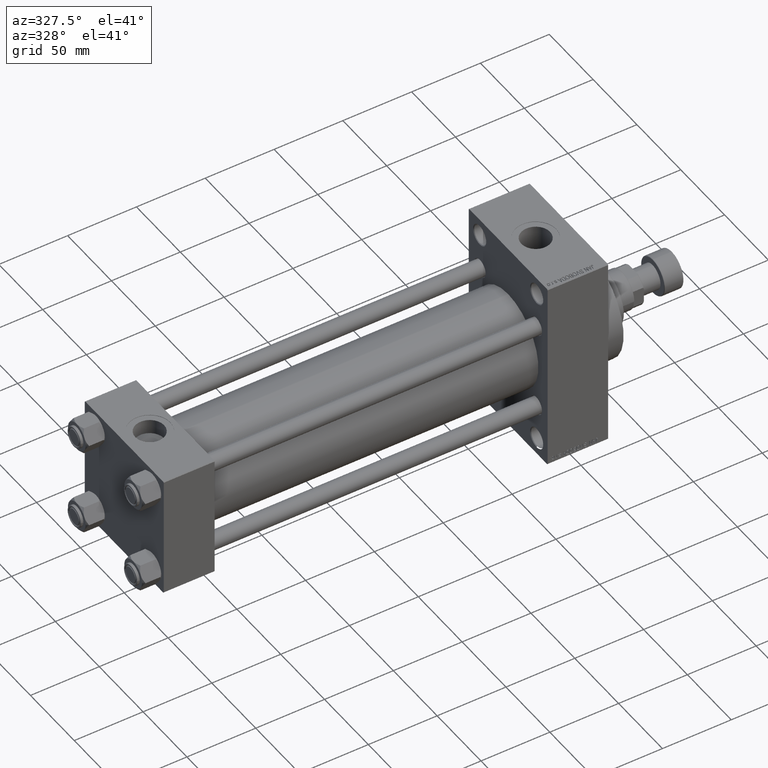
[diagram: clean part render]
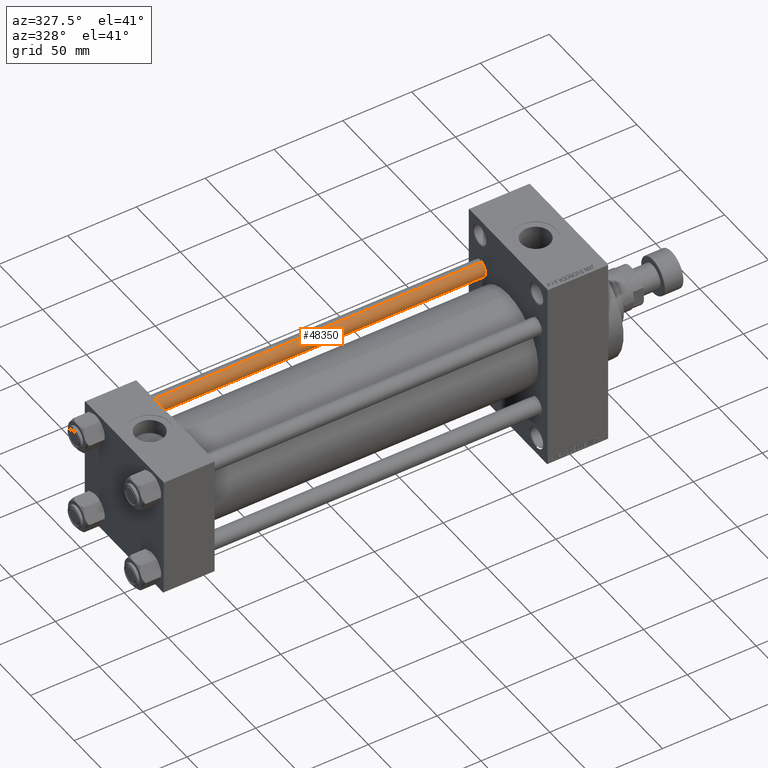
[diagram: same view with one face highlighted and labeled with its STEP entity id]
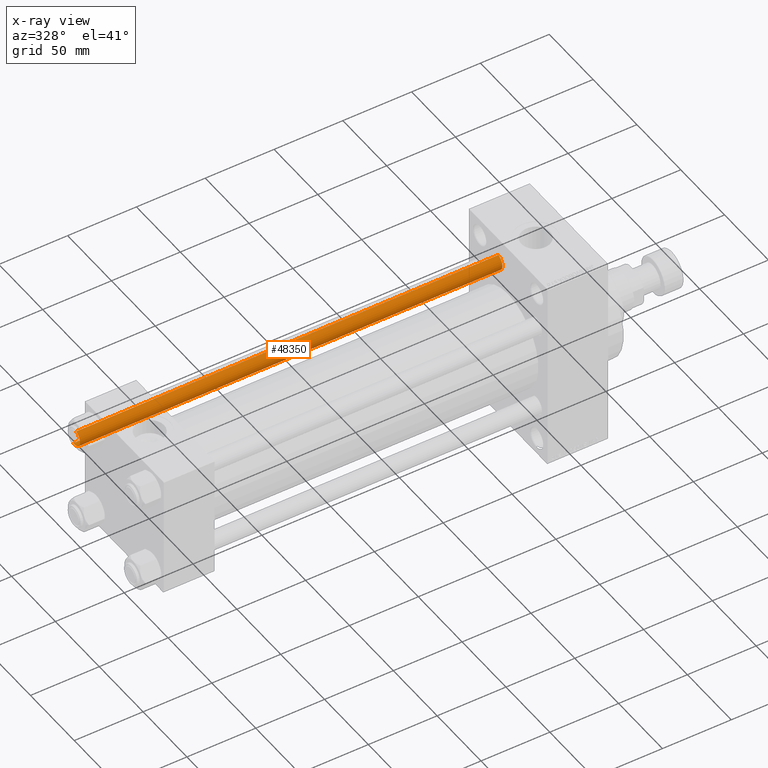
[diagram: x-ray of the same camera — body ghosted, the highlighted face saturated]
A machine part, auxiliary view. The second image highlights one B-rep face of the part: STEP entity #48350.
The next image is the same camera in x-ray: the body ghosted, the highlighted face saturated — about 0% of this face is hidden behind the body in this view.
In plain terms, the highlighted cylindrical surface (edge-blend (fillet) strip) has radius 6 mm, axis along (-1, -0, 0).
Its self-contained STEP definition (entity closure, byte-faithful):
#144 = EDGE_CURVE ( 'NONE', #37336, #24207, #5483, .T. ) ;
#456 = EDGE_CURVE ( 'NONE', #2309, #24513, #26232, .T. ) ;
#930 = EDGE_CURVE ( 'NONE', #24513, #24207, #26642, .T. ) ;
#2309 = VERTEX_POINT ( 'NONE', #44679 ) ;
#2823 = CARTESIAN_POINT ( 'NONE',  ( -6.000000000000000888, 0.000000000000000000, 308.0000000000000000 ) ) ;
#3079 = DIRECTION ( 'NONE',  ( -0.000000000000000000, -0.000000000000000000, -1.000000000000000000 ) ) ;
#3420 = CARTESIAN_POINT ( 'NONE',  ( 0.000000000000000000, 0.000000000000000000, 308.0000000000000000 ) ) ;
#3673 = DIRECTION ( 'NONE',  ( 1.000000000000000000, 0.000000000000000000, 0.000000000000000000 ) ) ;
#4264 = CARTESIAN_POINT ( 'NONE',  ( 0.000000000000000000, 0.000000000000000000, 0.5000000000000559552 ) ) ;
#5483 = LINE ( 'NONE', #20813, #6513 ) ;
#6513 = VECTOR ( 'NONE', #33639, 1000.000000000000000 ) ;
#8046 = DIRECTION ( 'NONE',  ( 1.000000000000000000, 0.000000000000000000, 0.000000000000000000 ) ) ;
#8180 = FACE_OUTER_BOUND ( 'NONE', #22981, .T. ) ;
#8299 = ORIENTED_EDGE ( 'NONE', *, *, #930, .T. ) ;
#11461 = DIRECTION ( 'NONE',  ( -1.000000000000000000, 0.000000000000000000, 0.000000000000000000 ) ) ;
#12620 = AXIS2_PLACEMENT_3D ( 'NONE', #49228, #48970, #3673 ) ;
#14196 = ORIENTED_EDGE ( 'NONE', *, *, #26761, .T. ) ;
#14765 = AXIS2_PLACEMENT_3D ( 'NONE', #3420, #38885, #11461 ) ;
#15576 = DIRECTION ( 'NONE',  ( -0.000000000000000000, -0.000000000000000000, 1.000000000000000000 ) ) ;
#16131 = VECTOR ( 'NONE', #3079, 1000.000000000000000 ) ;
#20413 = CARTESIAN_POINT ( 'NONE',  ( 6.000000000000000888, 7.347880794884120722E-16, 0.5000000000000559552 ) ) ;
#20813 = CARTESIAN_POINT ( 'NONE',  ( 6.000000000000000888, 7.347880794884120722E-16, 308.0000000000000000 ) ) ;
#22981 = EDGE_LOOP ( 'NONE', ( #48542, #14196, #28428, #8299 ) ) ;
#23091 = CIRCLE ( 'NONE', #12620, 6.000000000000000888 ) ;
#24207 = VERTEX_POINT ( 'NONE', #20413 ) ;
#24209 = AXIS2_PLACEMENT_3D ( 'NONE', #4264, #15576, #8046 ) ;
#24513 = VERTEX_POINT ( 'NONE', #25884 ) ;
#25884 = CARTESIAN_POINT ( 'NONE',  ( -6.000000000000000888, 0.000000000000000000, 0.5000000000000559552 ) ) ;
#26232 = LINE ( 'NONE', #2823, #16131 ) ;
#26642 = CIRCLE ( 'NONE', #24209, 6.000000000000000888 ) ;
#26761 = EDGE_CURVE ( 'NONE', #37336, #2309, #23091, .T. ) ;
#28428 = ORIENTED_EDGE ( 'NONE', *, *, #456, .T. ) ;
#30588 = CYLINDRICAL_SURFACE ( 'NONE', #14765, 6.000000000000000888 ) ;
#31920 = CARTESIAN_POINT ( 'NONE',  ( 6.000000000000000888, 7.347880794884120722E-16, 307.4999999999999432 ) ) ;
#33639 = DIRECTION ( 'NONE',  ( -0.000000000000000000, -0.000000000000000000, -1.000000000000000000 ) ) ;
#37336 = VERTEX_POINT ( 'NONE', #31920 ) ;
#38885 = DIRECTION ( 'NONE',  ( -0.000000000000000000, -0.000000000000000000, -1.000000000000000000 ) ) ;
#44679 = CARTESIAN_POINT ( 'NONE',  ( -6.000000000000000888, 0.000000000000000000, 307.4999999999999432 ) ) ;
#48350 = ADVANCED_FACE ( 'NONE', ( #8180 ), #30588, .T. ) ;
#48542 = ORIENTED_EDGE ( 'NONE', *, *, #144, .F. ) ;
#48970 = DIRECTION ( 'NONE',  ( 0.000000000000000000, 0.000000000000000000, -1.000000000000000000 ) ) ;
#49228 = CARTESIAN_POINT ( 'NONE',  ( 0.000000000000000000, 0.000000000000000000, 307.4999999999999432 ) ) ;